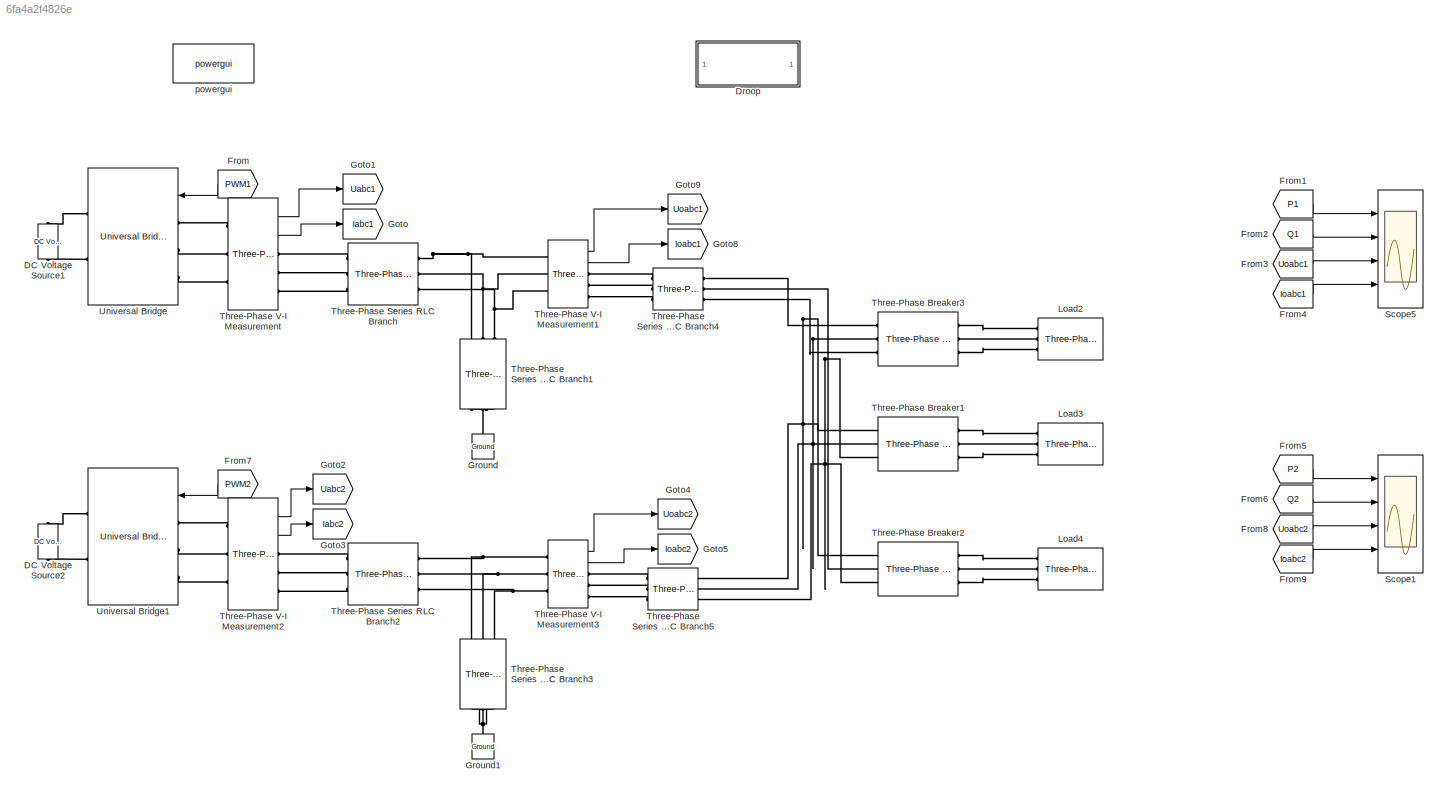
MODEL slx_6fa4a2f4826e
KIND model
CONFIG AbsTol = auto
CONFIG EnableMultiTasking = off
CONFIG FixedStep = auto
CONFIG MaxStep = auto
CONFIG MinStep = auto
CONFIG RelTol = 1e-3
CONFIG SampleTimeConstraint = Unconstrained
CONFIG Solver = VariableStepAuto
CONFIG SolverName = VariableStepAuto
CONFIG StartTime = 0.0
CONFIG StopTime = 8
BLOCK [Reference] DC Voltage Source1  REF=powerlib/Electrical Sources/DC Voltage Source
  Ports = [0, 0, 0, 0, 0, 1, 1]
  SourceBlock = powerlib/Electrical Sources/DC Voltage Source
  SourceType = DC Voltage Source
BLOCK [Reference] DC Voltage Source2  REF=powerlib/Electrical Sources/DC Voltage Source
  Ports = [0, 0, 0, 0, 0, 1, 1]
  SourceBlock = powerlib/Electrical Sources/DC Voltage Source
  SourceType = DC Voltage Source
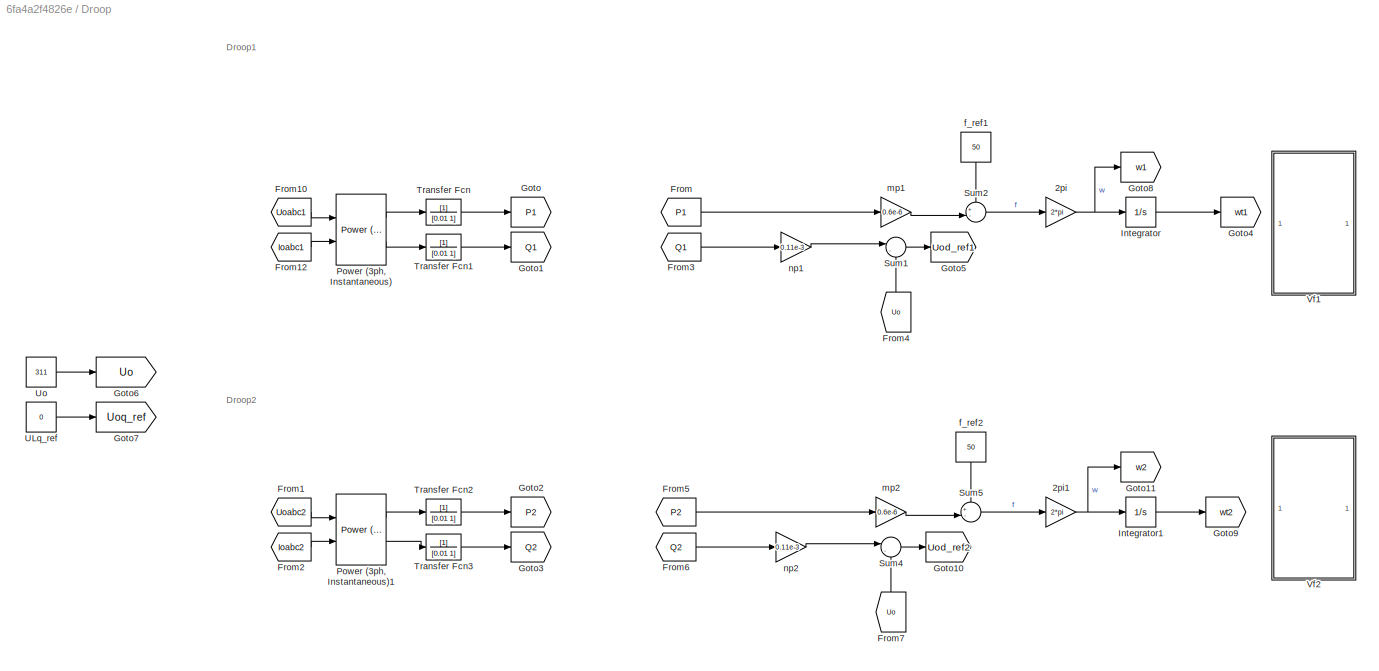
BLOCK [SubSystem] Droop
  Ports = []
BLOCK [Gain] Droop/2pi
  Gain = 2*pi
BLOCK [Gain] Droop/2pi1
  Gain = 2*pi
BLOCK [From] Droop/From
  GotoTag = P1
  TagVisibility = global
BLOCK [From] Droop/From1
  GotoTag = Uoabc2
  TagVisibility = global
BLOCK [From] Droop/From10
  GotoTag = Uoabc1
  TagVisibility = global
BLOCK [From] Droop/From12
  GotoTag = Ioabc1
  TagVisibility = global
BLOCK [From] Droop/From2
  GotoTag = Ioabc2
  TagVisibility = global
BLOCK [From] Droop/From3
  GotoTag = Q1
  TagVisibility = global
BLOCK [From] Droop/From4
  GotoTag = Uo
  TagVisibility = global
BLOCK [From] Droop/From5
  GotoTag = P2
  TagVisibility = global
BLOCK [From] Droop/From6
  GotoTag = Q2
  TagVisibility = global
BLOCK [From] Droop/From7
  GotoTag = Uo
  TagVisibility = global
BLOCK [Goto] Droop/Goto
  GotoTag = P1
  TagVisibility = global
BLOCK [Goto] Droop/Goto1
  GotoTag = Q1
  TagVisibility = global
BLOCK [Goto] Droop/Goto10
  GotoTag = Uod_ref2
  TagVisibility = global
BLOCK [Goto] Droop/Goto11
  GotoTag = w2
  TagVisibility = global
BLOCK [Goto] Droop/Goto2
  GotoTag = P2
  TagVisibility = global
BLOCK [Goto] Droop/Goto3
  GotoTag = Q2
  TagVisibility = global
BLOCK [Goto] Droop/Goto4
  GotoTag = wt1
  TagVisibility = global
BLOCK [Goto] Droop/Goto5
  GotoTag = Uod_ref1
  TagVisibility = global
BLOCK [Goto] Droop/Goto6
  GotoTag = Uo
  TagVisibility = global
BLOCK [Goto] Droop/Goto7
  GotoTag = Uoq_ref
  TagVisibility = global
BLOCK [Goto] Droop/Goto8
  GotoTag = w1
  TagVisibility = global
BLOCK [Goto] Droop/Goto9
  GotoTag = wt2
  TagVisibility = global
BLOCK [Integrator] Droop/Integrator
  Ports = [1, 1]
BLOCK [Integrator] Droop/Integrator1
  Ports = [1, 1]
BLOCK [Reference] Droop/Power (3ph, Instantaneous)  REF=powerlib_meascontrol/Measurements/Power (3ph, Instantaneous)
  Ports = [2, 2]
  SourceBlock = powerlib_meascontrol/Measurements/Power (3ph, Instantaneous)
  SourceType = Power (3ph, Instantaneous)
BLOCK [Reference] Droop/Power (3ph, Instantaneous)1  REF=powerlib_meascontrol/Measurements/Power (3ph, Instantaneous)
  Ports = [2, 2]
  SourceBlock = powerlib_meascontrol/Measurements/Power (3ph, Instantaneous)
  SourceType = Power (3ph, Instantaneous)
BLOCK [Sum] Droop/Sum1
  Inputs = |-+
  Ports = [2, 1]
BLOCK [Sum] Droop/Sum2
  Inputs = +-|
  Ports = [2, 1]
BLOCK [Sum] Droop/Sum4
  Inputs = |-+
  Ports = [2, 1]
BLOCK [Sum] Droop/Sum5
  Inputs = +-|
  Ports = [2, 1]
BLOCK [TransferFcn] Droop/Transfer Fcn
  Denominator = [0.01 1]
BLOCK [TransferFcn] Droop/Transfer Fcn1
  Denominator = [0.01 1]
BLOCK [TransferFcn] Droop/Transfer Fcn2
  Denominator = [0.01 1]
BLOCK [TransferFcn] Droop/Transfer Fcn3
  Denominator = [0.01 1]
BLOCK [Constant] Droop/ULq_ref
  Value = 0
BLOCK [Constant] Droop/Uo
  Value = 311
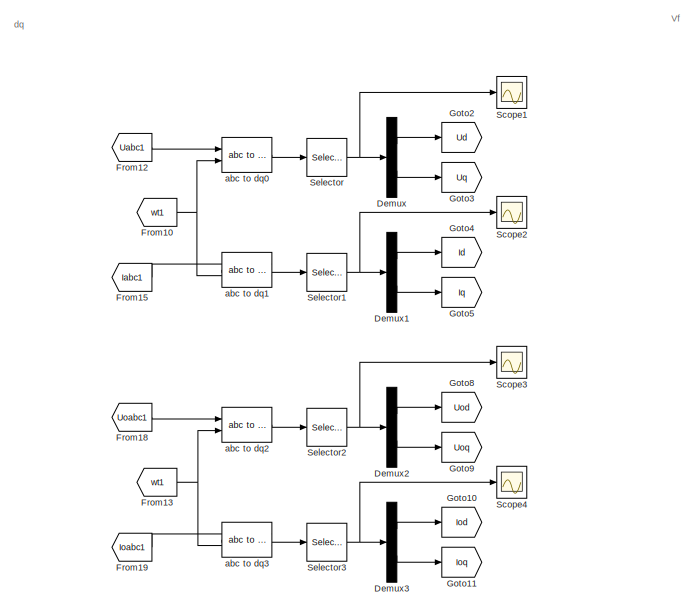
[diagram: Droop/Vf1 - part 1/2, left side, full height]
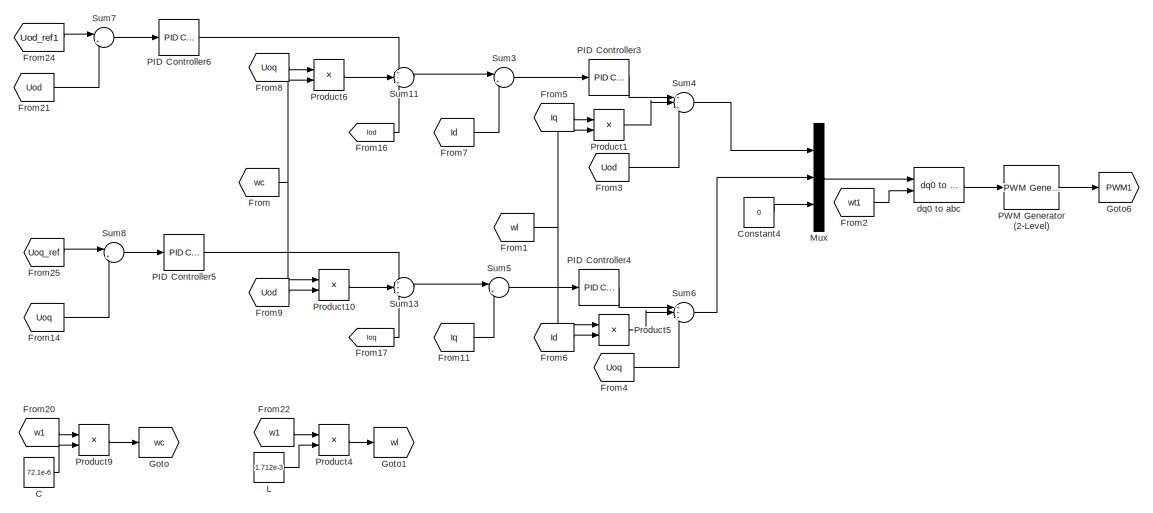
[diagram: Droop/Vf1 - part 2/2, right side, full height]
BLOCK [SubSystem] Droop/Vf1
  Ports = []
BLOCK [Constant] Droop/Vf1/C
  Value = 72.1e-6
BLOCK [Constant] Droop/Vf1/Constant4
  Value = 0
BLOCK [Demux] Droop/Vf1/Demux
  Outputs = 2
  Ports = [1, 2]
BLOCK [Demux] Droop/Vf1/Demux1
  Outputs = 2
  Ports = [1, 2]
BLOCK [Demux] Droop/Vf1/Demux2
  Outputs = 2
  Ports = [1, 2]
BLOCK [Demux] Droop/Vf1/Demux3
  Outputs = 2
  Ports = [1, 2]
BLOCK [From] Droop/Vf1/From
  GotoTag = wc
BLOCK [From] Droop/Vf1/From1
  GotoTag = wl
BLOCK [From] Droop/Vf1/From10
  GotoTag = wt1
  TagVisibility = global
BLOCK [From] Droop/Vf1/From11
  GotoTag = Iq
  IconDisplay = Tag and signal name
BLOCK [From] Droop/Vf1/From12
  GotoTag = Uabc1
  TagVisibility = global
BLOCK [From] Droop/Vf1/From13
  GotoTag = wt1
  TagVisibility = global
BLOCK [From] Droop/Vf1/From14
  GotoTag = Uoq
BLOCK [From] Droop/Vf1/From15
  GotoTag = Iabc1
  TagVisibility = global
BLOCK [From] Droop/Vf1/From16
  GotoTag = Iod
BLOCK [From] Droop/Vf1/From17
  GotoTag = Ioq
BLOCK [From] Droop/Vf1/From18
  GotoTag = Uoabc1
  TagVisibility = global
BLOCK [From] Droop/Vf1/From19
  GotoTag = Ioabc1
  TagVisibility = global
BLOCK [From] Droop/Vf1/From2
  GotoTag = wt1
  TagVisibility = global
BLOCK [From] Droop/Vf1/From20
  GotoTag = w1
  TagVisibility = global
BLOCK [From] Droop/Vf1/From21
  GotoTag = Uod
  IconDisplay = Tag and signal name
BLOCK [From] Droop/Vf1/From22
  GotoTag = w1
  TagVisibility = global
BLOCK [From] Droop/Vf1/From24
  GotoTag = Uod_ref1
  TagVisibility = global
BLOCK [From] Droop/Vf1/From25
  GotoTag = Uoq_ref
  IconDisplay = Tag and signal name
  TagVisibility = global
BLOCK [From] Droop/Vf1/From3
  GotoTag = Uod
  IconDisplay = Tag and signal name
BLOCK [From] Droop/Vf1/From4
  GotoTag = Uoq
BLOCK [From] Droop/Vf1/From5
  GotoTag = Iq
  IconDisplay = Tag and signal name
BLOCK [From] Droop/Vf1/From6
  GotoTag = Id
  IconDisplay = Tag and signal name
BLOCK [From] Droop/Vf1/From7
  GotoTag = Id
  IconDisplay = Tag and signal name
BLOCK [From] Droop/Vf1/From8
  GotoTag = Uoq
BLOCK [From] Droop/Vf1/From9
  GotoTag = Uod
  IconDisplay = Tag and signal name
BLOCK [Goto] Droop/Vf1/Goto
  GotoTag = wc
BLOCK [Goto] Droop/Vf1/Goto1
  GotoTag = wl
BLOCK [Goto] Droop/Vf1/Goto10
  GotoTag = Iod
BLOCK [Goto] Droop/Vf1/Goto11
  GotoTag = Ioq
BLOCK [Goto] Droop/Vf1/Goto2
  GotoTag = Ud
BLOCK [Goto] Droop/Vf1/Goto3
  GotoTag = Uq
BLOCK [Goto] Droop/Vf1/Goto4
  GotoTag = Id
BLOCK [Goto] Droop/Vf1/Goto5
  GotoTag = Iq
BLOCK [Goto] Droop/Vf1/Goto6
  GotoTag = PWM1
  TagVisibility = global
BLOCK [Goto] Droop/Vf1/Goto8
  GotoTag = Uod
BLOCK [Goto] Droop/Vf1/Goto9
  GotoTag = Uoq
BLOCK [Constant] Droop/Vf1/L
  Value = 1.712e-3
BLOCK [Mux] Droop/Vf1/Mux
  DisplayOption = bar
  Inputs = 3
  Ports = [3, 1]
BLOCK [Reference] Droop/Vf1/PID Controller3  REF=simulink/Continuous/PID Controller
  Ports = [1, 1]
  SourceBlock = simulink/Continuous/PID Controller
  SourceType = PID 1dof
BLOCK [Reference] Droop/Vf1/PID Controller4  REF=simulink/Continuous/PID Controller
  Ports = [1, 1]
  SourceBlock = simulink/Continuous/PID Controller
  SourceType = PID 1dof
BLOCK [Reference] Droop/Vf1/PID Controller5  REF=simulink/Continuous/PID Controller
  Ports = [1, 1]
  SourceBlock = simulink/Continuous/PID Controller
  SourceType = PID 1dof
BLOCK [Reference] Droop/Vf1/PID Controller6  REF=simulink/Continuous/PID Controller
  Ports = [1, 1]
  SourceBlock = simulink/Continuous/PID Controller
  SourceType = PID 1dof
BLOCK [Reference] Droop/Vf1/PWM Generator (2-Level)  REF=powerlib_meascontrol/Pulse & Signal Generators/PWM Generator (2-Level)
  Ports = [1, 1]
  SourceBlock = powerlib_meascontrol/Pulse & Signal Generators/PWM Generator (2-Level)
  SourceType = PWM Generator (2-Level)
BLOCK [Product] Droop/Vf1/Product1
  Ports = [2, 1]
BLOCK [Product] Droop/Vf1/Product10
  Ports = [2, 1]
BLOCK [Product] Droop/Vf1/Product4
  Ports = [2, 1]
BLOCK [Product] Droop/Vf1/Product5
  Ports = [2, 1]
BLOCK [Product] Droop/Vf1/Product6
  Ports = [2, 1]
BLOCK [Product] Droop/Vf1/Product9
  Ports = [2, 1]
BLOCK [Scope] Droop/Vf1/Scope1
  Floating = off
  NumInputPorts = 1
  Ports = [1]
  ScopeSpecificationString = Simulink.scopes.TimeScopeBlockCfg('CurrentConfiguration', extmgr.ConfigurationSet(extmgr.Configuration('Core','General UI',true),extmgr.Configuration('Core','Source UI',true),extmgr.Configuration('Sources','WiredSimulink',true,'DataLoggingVariableName','ScopeData3'),extmgr.Configuration('Visuals','Time Domain',true,'SerializedDisplays',{struct('MinYLimReal','-174.16657','MaxYLimReal','300.83007','...<+1464ch>
BLOCK [Scope] Droop/Vf1/Scope2
  Floating = off
  NumInputPorts = 1
  Ports = [1]
  ScopeSpecificationString = Simulink.scopes.TimeScopeBlockCfg('CurrentConfiguration', extmgr.ConfigurationSet(extmgr.Configuration('Core','General UI',true),extmgr.Configuration('Core','Source UI',true),extmgr.Configuration('Sources','WiredSimulink',true,'DataLoggingVariableName','ScopeData4'),extmgr.Configuration('Visuals','Time Domain',true,'SerializedDisplays',{struct('MinYLimReal','-9.5895','MaxYLimReal','44.81779','YLab...<+1452ch>
BLOCK [Scope] Droop/Vf1/Scope3
  Floating = off
  NumInputPorts = 1
  Ports = [1]
  ScopeSpecificationString = Simulink.scopes.TimeScopeBlockCfg('CurrentConfiguration', extmgr.ConfigurationSet(extmgr.Configuration('Core','General UI',true),extmgr.Configuration('Core','Source UI',true),extmgr.Configuration('Sources','WiredSimulink',true,'DataLoggingVariableName','ScopeData5'),extmgr.Configuration('Visuals','Time Domain',true,'SerializedDisplays',{struct('MinYLimReal','-43.7183','MaxYLimReal','390.50447','YL...<+1460ch>
BLOCK [Scope] Droop/Vf1/Scope4
  Floating = off
  NumInputPorts = 1
  Ports = [1]
  ScopeSpecificationString = Simulink.scopes.TimeScopeBlockCfg('CurrentConfiguration', extmgr.ConfigurationSet(extmgr.Configuration('Core','General UI',true),extmgr.Configuration('Core','Source UI',true),extmgr.Configuration('Sources','WiredSimulink',true,'DataLoggingVariableName','ScopeData6'),extmgr.Configuration('Visuals','Time Domain',true,'SerializedDisplays',{struct('MinYLimReal','-9.5895','MaxYLimReal','44.81779','YLab...<+1452ch>
BLOCK [Selector] Droop/Vf1/Selector
  IndexOptions = Index vector (dialog)
  Indices = [1 2]
  InputPortWidth = 3
  OutputSizes = 1
  Ports = [1, 1]
BLOCK [Selector] Droop/Vf1/Selector1
  IndexOptions = Index vector (dialog)
  Indices = [1 2]
  InputPortWidth = 3
  OutputSizes = 1
  Ports = [1, 1]
BLOCK [Selector] Droop/Vf1/Selector2
  IndexOptions = Index vector (dialog)
  Indices = [1 2]
  InputPortWidth = 3
  OutputSizes = 1
  Ports = [1, 1]
BLOCK [Selector] Droop/Vf1/Selector3
  IndexOptions = Index vector (dialog)
  Indices = [1 2]
  InputPortWidth = 3
  OutputSizes = 1
  Ports = [1, 1]
BLOCK [Sum] Droop/Vf1/Sum11
  Inputs = +-+
  Ports = [3, 1]
BLOCK [Sum] Droop/Vf1/Sum13
  Inputs = +++
  Ports = [3, 1]
BLOCK [Sum] Droop/Vf1/Sum3
  Inputs = |+-
  Ports = [2, 1]
BLOCK [Sum] Droop/Vf1/Sum4
  Inputs = +-+
  Ports = [3, 1]
BLOCK [Sum] Droop/Vf1/Sum5
  Inputs = |+-
  Ports = [2, 1]
BLOCK [Sum] Droop/Vf1/Sum6
  Inputs = +++
  Ports = [3, 1]
BLOCK [Sum] Droop/Vf1/Sum7
  Inputs = |+-
  Ports = [2, 1]
BLOCK [Sum] Droop/Vf1/Sum8
  Inputs = |+-
  Ports = [2, 1]
BLOCK [Reference] Droop/Vf1/abc to dq0  REF=powerlib_meascontrol/Transformations/abc to dq0
  Ports = [2, 1]
  SourceBlock = powerlib_meascontrol/Transformations/abc to dq0
  SourceType = abc to dq0 Transformation
BLOCK [Reference] Droop/Vf1/abc to dq1  REF=powerlib_meascontrol/Transformations/abc to dq0
  Ports = [2, 1]
  SourceBlock = powerlib_meascontrol/Transformations/abc to dq0
  SourceType = abc to dq0 Transformation
BLOCK [Reference] Droop/Vf1/abc to dq2  REF=powerlib_meascontrol/Transformations/abc to dq0
  Ports = [2, 1]
  SourceBlock = powerlib_meascontrol/Transformations/abc to dq0
  SourceType = abc to dq0 Transformation
BLOCK [Reference] Droop/Vf1/abc to dq3  REF=powerlib_meascontrol/Transformations/abc to dq0
  Ports = [2, 1]
  SourceBlock = powerlib_meascontrol/Transformations/abc to dq0
  SourceType = abc to dq0 Transformation
BLOCK [Reference] Droop/Vf1/dq0 to abc  REF=powerlib_meascontrol/Transformations/dq0 to abc
  Ports = [2, 1]
  SourceBlock = powerlib_meascontrol/Transformations/dq0 to abc
  SourceType = dq0 to abc Transformation
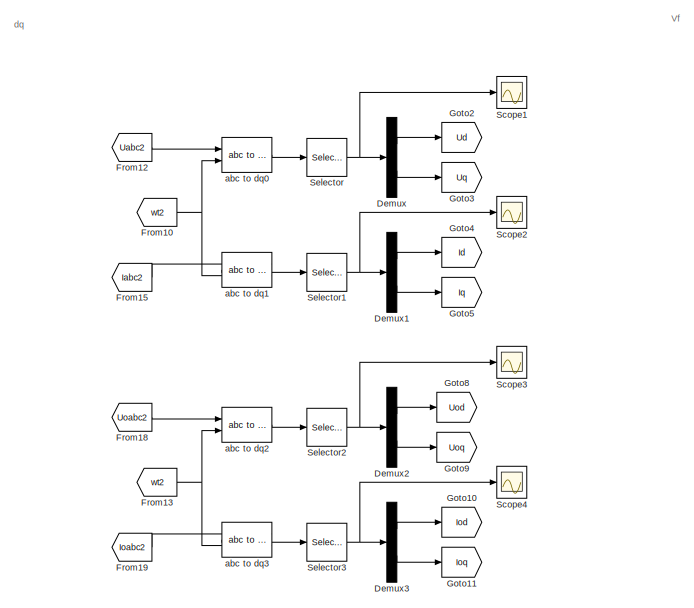
[diagram: Droop/Vf2 - part 1/2, left side, full height]
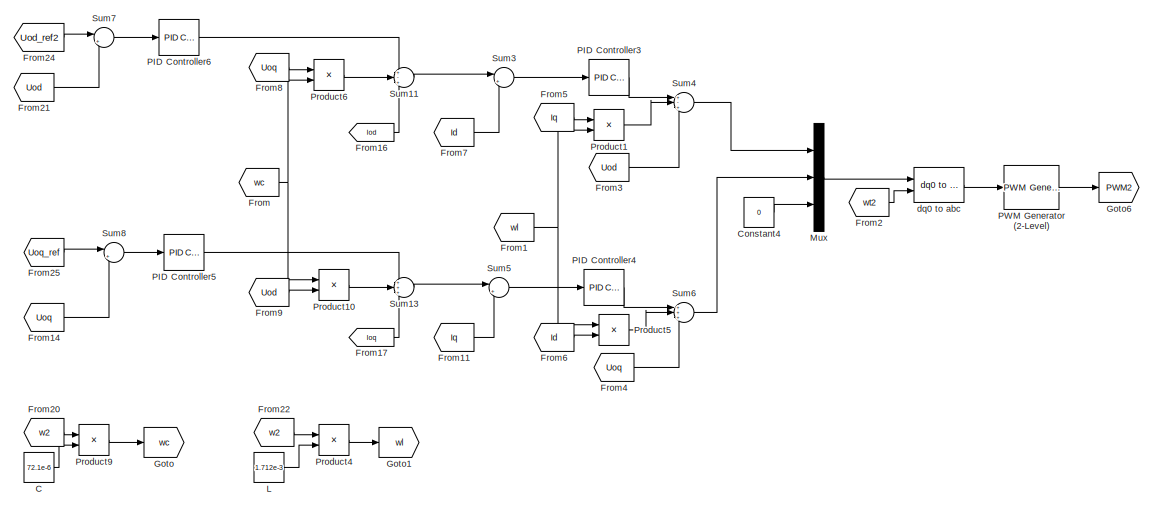
[diagram: Droop/Vf2 - part 2/2, right side, full height]
BLOCK [SubSystem] Droop/Vf2
  Ports = []
BLOCK [Constant] Droop/Vf2/C
  Value = 72.1e-6
BLOCK [Constant] Droop/Vf2/Constant4
  Value = 0
BLOCK [Demux] Droop/Vf2/Demux
  Outputs = 2
  Ports = [1, 2]
BLOCK [Demux] Droop/Vf2/Demux1
  Outputs = 2
  Ports = [1, 2]
BLOCK [Demux] Droop/Vf2/Demux2
  Outputs = 2
  Ports = [1, 2]
BLOCK [Demux] Droop/Vf2/Demux3
  Outputs = 2
  Ports = [1, 2]
BLOCK [From] Droop/Vf2/From
  GotoTag = wc
BLOCK [From] Droop/Vf2/From1
  GotoTag = wl
BLOCK [From] Droop/Vf2/From10
  GotoTag = wt2
  TagVisibility = global
BLOCK [From] Droop/Vf2/From11
  GotoTag = Iq
  IconDisplay = Tag and signal name
BLOCK [From] Droop/Vf2/From12
  GotoTag = Uabc2
  TagVisibility = global
BLOCK [From] Droop/Vf2/From13
  GotoTag = wt2
  TagVisibility = global
BLOCK [From] Droop/Vf2/From14
  GotoTag = Uoq
BLOCK [From] Droop/Vf2/From15
  GotoTag = Iabc2
  TagVisibility = global
BLOCK [From] Droop/Vf2/From16
  GotoTag = Iod
BLOCK [From] Droop/Vf2/From17
  GotoTag = Ioq
BLOCK [From] Droop/Vf2/From18
  GotoTag = Uoabc2
  TagVisibility = global
BLOCK [From] Droop/Vf2/From19
  GotoTag = Ioabc2
  TagVisibility = global
BLOCK [From] Droop/Vf2/From2
  GotoTag = wt2
  TagVisibility = global
BLOCK [From] Droop/Vf2/From20
  GotoTag = w2
  TagVisibility = global
BLOCK [From] Droop/Vf2/From21
  GotoTag = Uod
  IconDisplay = Tag and signal name
BLOCK [From] Droop/Vf2/From22
  GotoTag = w2
  TagVisibility = global
BLOCK [From] Droop/Vf2/From24
  GotoTag = Uod_ref2
  IconDisplay = Tag and signal name
  TagVisibility = global
BLOCK [From] Droop/Vf2/From25
  GotoTag = Uoq_ref
  IconDisplay = Tag and signal name
  TagVisibility = global
BLOCK [From] Droop/Vf2/From3
  GotoTag = Uod
  IconDisplay = Tag and signal name
BLOCK [From] Droop/Vf2/From4
  GotoTag = Uoq
BLOCK [From] Droop/Vf2/From5
  GotoTag = Iq
  IconDisplay = Tag and signal name
BLOCK [From] Droop/Vf2/From6
  GotoTag = Id
  IconDisplay = Tag and signal name
BLOCK [From] Droop/Vf2/From7
  GotoTag = Id
  IconDisplay = Tag and signal name
BLOCK [From] Droop/Vf2/From8
  GotoTag = Uoq
BLOCK [From] Droop/Vf2/From9
  GotoTag = Uod
  IconDisplay = Tag and signal name
BLOCK [Goto] Droop/Vf2/Goto
  GotoTag = wc
BLOCK [Goto] Droop/Vf2/Goto1
  GotoTag = wl
BLOCK [Goto] Droop/Vf2/Goto10
  GotoTag = Iod
BLOCK [Goto] Droop/Vf2/Goto11
  GotoTag = Ioq
BLOCK [Goto] Droop/Vf2/Goto2
  GotoTag = Ud
BLOCK [Goto] Droop/Vf2/Goto3
  GotoTag = Uq
BLOCK [Goto] Droop/Vf2/Goto4
  GotoTag = Id
BLOCK [Goto] Droop/Vf2/Goto5
  GotoTag = Iq
BLOCK [Goto] Droop/Vf2/Goto6
  GotoTag = PWM2
  TagVisibility = global
BLOCK [Goto] Droop/Vf2/Goto8
  GotoTag = Uod
BLOCK [Goto] Droop/Vf2/Goto9
  GotoTag = Uoq
BLOCK [Constant] Droop/Vf2/L
  Value = 1.712e-3
BLOCK [Mux] Droop/Vf2/Mux
  DisplayOption = bar
  Inputs = 3
  Ports = [3, 1]
BLOCK [Reference] Droop/Vf2/PID Controller3  REF=simulink/Continuous/PID Controller
  Ports = [1, 1]
  SourceBlock = simulink/Continuous/PID Controller
  SourceType = PID 1dof
BLOCK [Reference] Droop/Vf2/PID Controller4  REF=simulink/Continuous/PID Controller
  Ports = [1, 1]
  SourceBlock = simulink/Continuous/PID Controller
  SourceType = PID 1dof
BLOCK [Reference] Droop/Vf2/PID Controller5  REF=simulink/Continuous/PID Controller
  Ports = [1, 1]
  SourceBlock = simulink/Continuous/PID Controller
  SourceType = PID 1dof
BLOCK [Reference] Droop/Vf2/PID Controller6  REF=simulink/Continuous/PID Controller
  Ports = [1, 1]
  SourceBlock = simulink/Continuous/PID Controller
  SourceType = PID 1dof
BLOCK [Reference] Droop/Vf2/PWM Generator (2-Level)  REF=powerlib_meascontrol/Pulse & Signal Generators/PWM Generator (2-Level)
  Ports = [1, 1]
  SourceBlock = powerlib_meascontrol/Pulse & Signal Generators/PWM Generator (2-Level)
  SourceType = PWM Generator (2-Level)
BLOCK [Product] Droop/Vf2/Product1
  Ports = [2, 1]
BLOCK [Product] Droop/Vf2/Product10
  Ports = [2, 1]
BLOCK [Product] Droop/Vf2/Product4
  Ports = [2, 1]
BLOCK [Product] Droop/Vf2/Product5
  Ports = [2, 1]
BLOCK [Product] Droop/Vf2/Product6
  Ports = [2, 1]
BLOCK [Product] Droop/Vf2/Product9
  Ports = [2, 1]
BLOCK [Scope] Droop/Vf2/Scope1
  Floating = off
  NumInputPorts = 1
  Ports = [1]
  ScopeSpecificationString = Simulink.scopes.TimeScopeBlockCfg('CurrentConfiguration', extmgr.ConfigurationSet(extmgr.Configuration('Core','General UI',true),extmgr.Configuration('Core','Source UI',true),extmgr.Configuration('Sources','WiredSimulink',true,'DataLoggingVariableName','ScopeData7'),extmgr.Configuration('Visuals','Time Domain',true,'SerializedDisplays',{struct('MinYLimReal','-174.16657','MaxYLimReal','300.83007','...<+1464ch>
BLOCK [Scope] Droop/Vf2/Scope2
  Floating = off
  NumInputPorts = 1
  Ports = [1]
  ScopeSpecificationString = Simulink.scopes.TimeScopeBlockCfg('CurrentConfiguration', extmgr.ConfigurationSet(extmgr.Configuration('Core','General UI',true),extmgr.Configuration('Core','Source UI',true),extmgr.Configuration('Sources','WiredSimulink',true,'DataLoggingVariableName','ScopeData8'),extmgr.Configuration('Visuals','Time Domain',true,'SerializedDisplays',{struct('MinYLimReal','-9.5895','MaxYLimReal','44.81779','YLab...<+1452ch>
BLOCK [Scope] Droop/Vf2/Scope3
  Floating = off
  NumInputPorts = 1
  Ports = [1]
  ScopeSpecificationString = Simulink.scopes.TimeScopeBlockCfg('CurrentConfiguration', extmgr.ConfigurationSet(extmgr.Configuration('Core','General UI',true),extmgr.Configuration('Core','Source UI',true),extmgr.Configuration('Sources','WiredSimulink',true,'DataLoggingVariableName','ScopeData9'),extmgr.Configuration('Visuals','Time Domain',true,'SerializedDisplays',{struct('MinYLimReal','-43.7183','MaxYLimReal','390.50447','YL...<+1460ch>
BLOCK [Scope] Droop/Vf2/Scope4
  Floating = off
  NumInputPorts = 1
  Ports = [1]
  ScopeSpecificationString = Simulink.scopes.TimeScopeBlockCfg('CurrentConfiguration', extmgr.ConfigurationSet(extmgr.Configuration('Core','General UI',true),extmgr.Configuration('Core','Source UI',true),extmgr.Configuration('Sources','WiredSimulink',true,'DataLoggingVariableName','ScopeData10'),extmgr.Configuration('Visuals','Time Domain',true,'SerializedDisplays',{struct('MinYLimReal','-9.5895','MaxYLimReal','44.81779','YLa...<+1453ch>
BLOCK [Selector] Droop/Vf2/Selector
  IndexOptions = Index vector (dialog)
  Indices = [1 2]
  InputPortWidth = 3
  OutputSizes = 1
  Ports = [1, 1]
BLOCK [Selector] Droop/Vf2/Selector1
  IndexOptions = Index vector (dialog)
  Indices = [1 2]
  InputPortWidth = 3
  OutputSizes = 1
  Ports = [1, 1]
BLOCK [Selector] Droop/Vf2/Selector2
  IndexOptions = Index vector (dialog)
  Indices = [1 2]
  InputPortWidth = 3
  OutputSizes = 1
  Ports = [1, 1]
BLOCK [Selector] Droop/Vf2/Selector3
  IndexOptions = Index vector (dialog)
  Indices = [1 2]
  InputPortWidth = 3
  OutputSizes = 1
  Ports = [1, 1]
BLOCK [Sum] Droop/Vf2/Sum11
  Inputs = +-+
  Ports = [3, 1]
BLOCK [Sum] Droop/Vf2/Sum13
  Inputs = +++
  Ports = [3, 1]
BLOCK [Sum] Droop/Vf2/Sum3
  Inputs = |+-
  Ports = [2, 1]
BLOCK [Sum] Droop/Vf2/Sum4
  Inputs = +-+
  Ports = [3, 1]
BLOCK [Sum] Droop/Vf2/Sum5
  Inputs = |+-
  Ports = [2, 1]
BLOCK [Sum] Droop/Vf2/Sum6
  Inputs = +++
  Ports = [3, 1]
BLOCK [Sum] Droop/Vf2/Sum7
  Inputs = |+-
  Ports = [2, 1]
BLOCK [Sum] Droop/Vf2/Sum8
  Inputs = |+-
  Ports = [2, 1]
BLOCK [Reference] Droop/Vf2/abc to dq0  REF=powerlib_meascontrol/Transformations/abc to dq0
  Ports = [2, 1]
  SourceBlock = powerlib_meascontrol/Transformations/abc to dq0
  SourceType = abc to dq0 Transformation
BLOCK [Reference] Droop/Vf2/abc to dq1  REF=powerlib_meascontrol/Transformations/abc to dq0
  Ports = [2, 1]
  SourceBlock = powerlib_meascontrol/Transformations/abc to dq0
  SourceType = abc to dq0 Transformation
BLOCK [Reference] Droop/Vf2/abc to dq2  REF=powerlib_meascontrol/Transformations/abc to dq0
  Ports = [2, 1]
  SourceBlock = powerlib_meascontrol/Transformations/abc to dq0
  SourceType = abc to dq0 Transformation
BLOCK [Reference] Droop/Vf2/abc to dq3  REF=powerlib_meascontrol/Transformations/abc to dq0
  Ports = [2, 1]
  SourceBlock = powerlib_meascontrol/Transformations/abc to dq0
  SourceType = abc to dq0 Transformation
BLOCK [Reference] Droop/Vf2/dq0 to abc  REF=powerlib_meascontrol/Transformations/dq0 to abc
  Ports = [2, 1]
  SourceBlock = powerlib_meascontrol/Transformations/dq0 to abc
  SourceType = dq0 to abc Transformation
BLOCK [Constant] Droop/f_ref1
  Value = 50
BLOCK [Constant] Droop/f_ref2
  Value = 50
BLOCK [Gain] Droop/mp1
  Gain = 0.6e-6
BLOCK [Gain] Droop/mp2
  Gain = 0.6e-6
BLOCK [Gain] Droop/np1
  Gain = 0.11e-3
BLOCK [Gain] Droop/np2
  Gain = 0.11e-3
BLOCK [From] From
  GotoTag = PWM1
  IconDisplay = Tag and signal name
  TagVisibility = global
BLOCK [From] From1
  GotoTag = P1
  TagVisibility = global
BLOCK [From] From2
  GotoTag = Q1
  TagVisibility = global
BLOCK [From] From3
  GotoTag = Uoabc1
  TagVisibility = global
BLOCK [From] From4
  GotoTag = Ioabc1
  TagVisibility = global
BLOCK [From] From5
  GotoTag = P2
  TagVisibility = global
BLOCK [From] From6
  GotoTag = Q2
  TagVisibility = global
BLOCK [From] From7
  GotoTag = PWM2
  TagVisibility = global
BLOCK [From] From8
  GotoTag = Uoabc2
  TagVisibility = global
BLOCK [From] From9
  GotoTag = Ioabc2
  TagVisibility = global
BLOCK [Goto] Goto
  GotoTag = Iabc1
  TagVisibility = global
BLOCK [Goto] Goto1
  GotoTag = Uabc1
  TagVisibility = global
BLOCK [Goto] Goto2
  GotoTag = Uabc2
  TagVisibility = global
BLOCK [Goto] Goto3
  GotoTag = Iabc2
  TagVisibility = global
BLOCK [Goto] Goto4
  GotoTag = Uoabc2
  TagVisibility = global
BLOCK [Goto] Goto5
  GotoTag = Ioabc2
  TagVisibility = global
BLOCK [Goto] Goto8
  GotoTag = Ioabc1
  TagVisibility = global
BLOCK [Goto] Goto9
  GotoTag = Uoabc1
  TagVisibility = global
BLOCK [Reference] Ground  REF=powerlib/Elements/Ground
  Ports = [0, 0, 0, 0, 0, 1]
  SourceBlock = powerlib/Elements/Ground
  SourceType = Ground
BLOCK [Reference] Ground1  REF=powerlib/Elements/Ground
  Ports = [0, 0, 0, 0, 0, 1]
  SourceBlock = powerlib/Elements/Ground
  SourceType = Ground
BLOCK [Reference] Load2  REF=powerlib/Elements/Three-Phase Series RLC Load
  AttributesFormatString = \n
  Ports = [0, 0, 0, 0, 0, 3]
  SourceBlock = powerlib/Elements/Three-Phase Series RLC Load
  SourceType = Three-Phase Series RLC Load
BLOCK [Reference] Load3  REF=powerlib/Elements/Three-Phase Series RLC Load
  AttributesFormatString = \n
  Ports = [0, 0, 0, 0, 0, 3]
  SourceBlock = powerlib/Elements/Three-Phase Series RLC Load
  SourceType = Three-Phase Series RLC Load
BLOCK [Reference] Load4  REF=powerlib/Elements/Three-Phase Series RLC Load
  AttributesFormatString = \n
  Ports = [0, 0, 0, 0, 0, 3]
  SourceBlock = powerlib/Elements/Three-Phase Series RLC Load
  SourceType = Three-Phase Series RLC Load
BLOCK [Scope] Scope1
  Floating = off
  NumInputPorts = 4
  Ports = [4]
  ScopeSpecificationString = Simulink.scopes.TimeScopeBlockCfg('CurrentConfiguration', extmgr.ConfigurationSet(extmgr.Configuration('Core','General UI',true),extmgr.Configuration('Core','Source UI',true),extmgr.Configuration('Sources','WiredSimulink',true,'DataLoggingVariableName','ScopeData11'),extmgr.Configuration('Visuals','Time Domain',true,'SerializedDisplays',{struct('MinYLimReal','-1475.06608','MaxYLimReal','13275.5947...<+4269ch>
BLOCK [Scope] Scope5
  Floating = off
  NumInputPorts = 4
  Ports = [4]
  ScopeSpecificationString = Simulink.scopes.TimeScopeBlockCfg('CurrentConfiguration', extmgr.ConfigurationSet(extmgr.Configuration('Core','General UI',true),extmgr.Configuration('Core','Source UI',true),extmgr.Configuration('Sources','WiredSimulink',true,'DataLoggingVariableName','ScopeData4'),extmgr.Configuration('Visuals','Time Domain',true,'SerializedDisplays',{struct('MinYLimReal','-1137.70743','MaxYLimReal','10239.36689...<+4262ch>
BLOCK [Reference] Three-Phase Breaker1  REF=powerlib/Elements/Three-Phase Breaker
  Ports = [0, 0, 0, 0, 0, 3, 3]
  SourceBlock = powerlib/Elements/Three-Phase Breaker
  SourceType = Three-Phase Breaker
BLOCK [Reference] Three-Phase Breaker2  REF=powerlib/Elements/Three-Phase Breaker
  Ports = [0, 0, 0, 0, 0, 3, 3]
  SourceBlock = powerlib/Elements/Three-Phase Breaker
  SourceType = Three-Phase Breaker
BLOCK [Reference] Three-Phase Breaker3  REF=powerlib/Elements/Three-Phase Breaker
  Ports = [0, 0, 0, 0, 0, 3, 3]
  SourceBlock = powerlib/Elements/Three-Phase Breaker
  SourceType = Three-Phase Breaker
BLOCK [Reference] Three-Phase Series RLC Branch  REF=powerlib/Elements/Three-Phase Series RLC Branch
  AttributesFormatString = \n
  Ports = [0, 0, 0, 0, 0, 3, 3]
  SourceBlock = powerlib/Elements/Three-Phase Series RLC Branch
  SourceType = Three-Phase Series RLC Branch
BLOCK [Reference] Three-Phase Series RLC Branch1  REF=powerlib/Elements/Three-Phase Series RLC Branch
  AttributesFormatString = \n
  Ports = [0, 0, 0, 0, 0, 3, 3]
  SourceBlock = powerlib/Elements/Three-Phase Series RLC Branch
  SourceType = Three-Phase Series RLC Branch
BLOCK [Reference] Three-Phase Series RLC Branch2  REF=powerlib/Elements/Three-Phase Series RLC Branch
  AttributesFormatString = \n
  Ports = [0, 0, 0, 0, 0, 3, 3]
  SourceBlock = powerlib/Elements/Three-Phase Series RLC Branch
  SourceType = Three-Phase Series RLC Branch
BLOCK [Reference] Three-Phase Series RLC Branch3  REF=powerlib/Elements/Three-Phase Series RLC Branch
  AttributesFormatString = \n
  Ports = [0, 0, 0, 0, 0, 3, 3]
  SourceBlock = powerlib/Elements/Three-Phase Series RLC Branch
  SourceType = Three-Phase Series RLC Branch
BLOCK [Reference] Three-Phase Series RLC Branch4  REF=powerlib/Elements/Three-Phase Series RLC Branch
  AttributesFormatString = \n
  Ports = [0, 0, 0, 0, 0, 3, 3]
  SourceBlock = powerlib/Elements/Three-Phase Series RLC Branch
  SourceType = Three-Phase Series RLC Branch
BLOCK [Reference] Three-Phase Series RLC Branch5  REF=powerlib/Elements/Three-Phase Series RLC Branch
  AttributesFormatString = \n
  Ports = [0, 0, 0, 0, 0, 3, 3]
  SourceBlock = powerlib/Elements/Three-Phase Series RLC Branch
  SourceType = Three-Phase Series RLC Branch
BLOCK [Reference] Three-Phase V-I Measurement  REF=powerlib/Measurements/Three-Phase V-I Measurement
  Ports = [0, 2, 0, 0, 0, 3, 3]
  SourceBlock = powerlib/Measurements/Three-Phase V-I Measurement
  SourceType = Three-Phase VI Measurement
BLOCK [Reference] Three-Phase V-I Measurement1  REF=powerlib/Measurements/Three-Phase V-I Measurement
  Ports = [0, 2, 0, 0, 0, 3, 3]
  SourceBlock = powerlib/Measurements/Three-Phase V-I Measurement
  SourceType = Three-Phase VI Measurement
BLOCK [Reference] Three-Phase V-I Measurement2  REF=powerlib/Measurements/Three-Phase V-I Measurement
  Ports = [0, 2, 0, 0, 0, 3, 3]
  SourceBlock = powerlib/Measurements/Three-Phase V-I Measurement
  SourceType = Three-Phase VI Measurement
BLOCK [Reference] Three-Phase V-I Measurement3  REF=powerlib/Measurements/Three-Phase V-I Measurement
  Ports = [0, 2, 0, 0, 0, 3, 3]
  SourceBlock = powerlib/Measurements/Three-Phase V-I Measurement
  SourceType = Three-Phase VI Measurement
BLOCK [Reference] Universal Bridge  REF=powerlib/Power Electronics/Universal Bridge
  Ports = [1, 0, 0, 0, 0, 3, 2]
  SourceBlock = powerlib/Power Electronics/Universal Bridge
  SourceType = Universal Bridge
BLOCK [Reference] Universal Bridge1  REF=powerlib/Power Electronics/Universal Bridge
  Ports = [1, 0, 0, 0, 0, 3, 2]
  SourceBlock = powerlib/Power Electronics/Universal Bridge
  SourceType = Universal Bridge
BLOCK [Reference] powergui  REF=powerlib/powergui
  Ports = []
  Priority = 1
  SourceBlock = powerlib/powergui
  SourceType = PSB option menu block
ANNOTATION Droop: Droop1
ANNOTATION Droop: Droop2
ANNOTATION Droop/Vf1: Vf
ANNOTATION Droop/Vf1: dq
ANNOTATION Droop/Vf2: Vf
ANNOTATION Droop/Vf2: dq
NET Droop/2pi1:1 -> Droop/Goto11:1, Droop/Integrator1:1
NET Droop/2pi:1 -> Droop/Goto8:1, Droop/Integrator:1
LINE Droop/From10:1 -> Droop/Power (3ph, Instantaneous):1
LINE Droop/From12:1 -> Droop/Power (3ph, Instantaneous):2
LINE Droop/From1:1 -> Droop/Power (3ph, Instantaneous)1:1
LINE Droop/From2:1 -> Droop/Power (3ph, Instantaneous)1:2
LINE Droop/From3:1 -> Droop/np1:1
LINE Droop/From4:1 -> Droop/Sum1:2
LINE Droop/From5:1 -> Droop/mp2:1
LINE Droop/From6:1 -> Droop/np2:1
LINE Droop/From7:1 -> Droop/Sum4:2
LINE Droop/From:1 -> Droop/mp1:1
LINE Droop/Integrator1:1 -> Droop/Goto9:1
LINE Droop/Integrator:1 -> Droop/Goto4:1
LINE Droop/Power (3ph, Instantaneous)1:1 -> Droop/Transfer Fcn2:1
LINE Droop/Power (3ph, Instantaneous)1:2 -> Droop/Transfer Fcn3:1
LINE Droop/Power (3ph, Instantaneous):1 -> Droop/Transfer Fcn:1
LINE Droop/Power (3ph, Instantaneous):2 -> Droop/Transfer Fcn1:1
LINE Droop/Sum1:1 -> Droop/Goto5:1
LINE Droop/Sum2:1 -> Droop/2pi:1
LINE Droop/Sum4:1 -> Droop/Goto10:1
LINE Droop/Sum5:1 -> Droop/2pi1:1
LINE Droop/Transfer Fcn1:1 -> Droop/Goto1:1
LINE Droop/Transfer Fcn2:1 -> Droop/Goto2:1
LINE Droop/Transfer Fcn3:1 -> Droop/Goto3:1
LINE Droop/Transfer Fcn:1 -> Droop/Goto:1
LINE Droop/ULq_ref:1 -> Droop/Goto7:1
LINE Droop/Uo:1 -> Droop/Goto6:1
LINE Droop/Vf1/C:1 -> Droop/Vf1/Product9:2
LINE Droop/Vf1/Constant4:1 -> Droop/Vf1/Mux:3
LINE Droop/Vf1/Demux1:1 -> Droop/Vf1/Goto4:1
LINE Droop/Vf1/Demux1:2 -> Droop/Vf1/Goto5:1
LINE Droop/Vf1/Demux2:1 -> Droop/Vf1/Goto8:1
LINE Droop/Vf1/Demux2:2 -> Droop/Vf1/Goto9:1
LINE Droop/Vf1/Demux3:1 -> Droop/Vf1/Goto10:1
LINE Droop/Vf1/Demux3:2 -> Droop/Vf1/Goto11:1
LINE Droop/Vf1/Demux:1 -> Droop/Vf1/Goto2:1
LINE Droop/Vf1/Demux:2 -> Droop/Vf1/Goto3:1
NET Droop/Vf1/From10:1 -> Droop/Vf1/abc to dq0:2, Droop/Vf1/abc to dq1:2
LINE Droop/Vf1/From11:1 -> Droop/Vf1/Sum5:2
LINE Droop/Vf1/From12:1 -> Droop/Vf1/abc to dq0:1
NET Droop/Vf1/From13:1 -> Droop/Vf1/abc to dq2:2, Droop/Vf1/abc to dq3:2
LINE Droop/Vf1/From14:1 -> Droop/Vf1/Sum8:2
LINE Droop/Vf1/From15:1 -> Droop/Vf1/abc to dq1:1
LINE Droop/Vf1/From16:1 -> Droop/Vf1/Sum11:3
LINE Droop/Vf1/From17:1 -> Droop/Vf1/Sum13:3
LINE Droop/Vf1/From18:1 -> Droop/Vf1/abc to dq2:1
LINE Droop/Vf1/From19:1 -> Droop/Vf1/abc to dq3:1
NET Droop/Vf1/From1:1 -> Droop/Vf1/Product1:2, Droop/Vf1/Product5:1
LINE Droop/Vf1/From20:1 -> Droop/Vf1/Product9:1
LINE Droop/Vf1/From21:1 -> Droop/Vf1/Sum7:2
LINE Droop/Vf1/From22:1 -> Droop/Vf1/Product4:1
LINE Droop/Vf1/From24:1 -> Droop/Vf1/Sum7:1
LINE Droop/Vf1/From25:1 -> Droop/Vf1/Sum8:1
LINE Droop/Vf1/From2:1 -> Droop/Vf1/dq0 to abc:2
LINE Droop/Vf1/From3:1 -> Droop/Vf1/Sum4:3
LINE Droop/Vf1/From4:1 -> Droop/Vf1/Sum6:3
LINE Droop/Vf1/From5:1 -> Droop/Vf1/Product1:1
LINE Droop/Vf1/From6:1 -> Droop/Vf1/Product5:2
LINE Droop/Vf1/From7:1 -> Droop/Vf1/Sum3:2
LINE Droop/Vf1/From8:1 -> Droop/Vf1/Product6:1
LINE Droop/Vf1/From9:1 -> Droop/Vf1/Product10:2
NET Droop/Vf1/From:1 -> Droop/Vf1/Product10:1, Droop/Vf1/Product6:2
LINE Droop/Vf1/L:1 -> Droop/Vf1/Product4:2
LINE Droop/Vf1/Mux:1 -> Droop/Vf1/dq0 to abc:1
LINE Droop/Vf1/PID Controller3:1 -> Droop/Vf1/Sum4:1
LINE Droop/Vf1/PID Controller4:1 -> Droop/Vf1/Sum6:1
LINE Droop/Vf1/PID Controller5:1 -> Droop/Vf1/Sum13:1
LINE Droop/Vf1/PID Controller6:1 -> Droop/Vf1/Sum11:1
LINE Droop/Vf1/PWM Generator (2-Level):1 -> Droop/Vf1/Goto6:1
LINE Droop/Vf1/Product10:1 -> Droop/Vf1/Sum13:2
LINE Droop/Vf1/Product1:1 -> Droop/Vf1/Sum4:2
LINE Droop/Vf1/Product4:1 -> Droop/Vf1/Goto1:1
LINE Droop/Vf1/Product5:1 -> Droop/Vf1/Sum6:2
LINE Droop/Vf1/Product6:1 -> Droop/Vf1/Sum11:2
LINE Droop/Vf1/Product9:1 -> Droop/Vf1/Goto:1
NET Droop/Vf1/Selector1:1 -> Droop/Vf1/Demux1:1, Droop/Vf1/Scope2:1
NET Droop/Vf1/Selector2:1 -> Droop/Vf1/Demux2:1, Droop/Vf1/Scope3:1
NET Droop/Vf1/Selector3:1 -> Droop/Vf1/Demux3:1, Droop/Vf1/Scope4:1
NET Droop/Vf1/Selector:1 -> Droop/Vf1/Demux:1, Droop/Vf1/Scope1:1
LINE Droop/Vf1/Sum11:1 -> Droop/Vf1/Sum3:1
LINE Droop/Vf1/Sum13:1 -> Droop/Vf1/Sum5:1
LINE Droop/Vf1/Sum3:1 -> Droop/Vf1/PID Controller3:1
LINE Droop/Vf1/Sum4:1 -> Droop/Vf1/Mux:1
LINE Droop/Vf1/Sum5:1 -> Droop/Vf1/PID Controller4:1
LINE Droop/Vf1/Sum6:1 -> Droop/Vf1/Mux:2
LINE Droop/Vf1/Sum7:1 -> Droop/Vf1/PID Controller6:1
LINE Droop/Vf1/Sum8:1 -> Droop/Vf1/PID Controller5:1
LINE Droop/Vf1/abc to dq0:1 -> Droop/Vf1/Selector:1
LINE Droop/Vf1/abc to dq1:1 -> Droop/Vf1/Selector1:1
LINE Droop/Vf1/abc to dq2:1 -> Droop/Vf1/Selector2:1
LINE Droop/Vf1/abc to dq3:1 -> Droop/Vf1/Selector3:1
LINE Droop/Vf1/dq0 to abc:1 -> Droop/Vf1/PWM Generator (2-Level):1
LINE Droop/Vf2/C:1 -> Droop/Vf2/Product9:2
LINE Droop/Vf2/Constant4:1 -> Droop/Vf2/Mux:3
LINE Droop/Vf2/Demux1:1 -> Droop/Vf2/Goto4:1
LINE Droop/Vf2/Demux1:2 -> Droop/Vf2/Goto5:1
LINE Droop/Vf2/Demux2:1 -> Droop/Vf2/Goto8:1
LINE Droop/Vf2/Demux2:2 -> Droop/Vf2/Goto9:1
LINE Droop/Vf2/Demux3:1 -> Droop/Vf2/Goto10:1
LINE Droop/Vf2/Demux3:2 -> Droop/Vf2/Goto11:1
LINE Droop/Vf2/Demux:1 -> Droop/Vf2/Goto2:1
LINE Droop/Vf2/Demux:2 -> Droop/Vf2/Goto3:1
NET Droop/Vf2/From10:1 -> Droop/Vf2/abc to dq0:2, Droop/Vf2/abc to dq1:2
LINE Droop/Vf2/From11:1 -> Droop/Vf2/Sum5:2
LINE Droop/Vf2/From12:1 -> Droop/Vf2/abc to dq0:1
NET Droop/Vf2/From13:1 -> Droop/Vf2/abc to dq2:2, Droop/Vf2/abc to dq3:2
LINE Droop/Vf2/From14:1 -> Droop/Vf2/Sum8:2
LINE Droop/Vf2/From15:1 -> Droop/Vf2/abc to dq1:1
LINE Droop/Vf2/From16:1 -> Droop/Vf2/Sum11:3
LINE Droop/Vf2/From17:1 -> Droop/Vf2/Sum13:3
LINE Droop/Vf2/From18:1 -> Droop/Vf2/abc to dq2:1
LINE Droop/Vf2/From19:1 -> Droop/Vf2/abc to dq3:1
NET Droop/Vf2/From1:1 -> Droop/Vf2/Product1:2, Droop/Vf2/Product5:1
LINE Droop/Vf2/From20:1 -> Droop/Vf2/Product9:1
LINE Droop/Vf2/From21:1 -> Droop/Vf2/Sum7:2
LINE Droop/Vf2/From22:1 -> Droop/Vf2/Product4:1
LINE Droop/Vf2/From24:1 -> Droop/Vf2/Sum7:1
LINE Droop/Vf2/From25:1 -> Droop/Vf2/Sum8:1
LINE Droop/Vf2/From2:1 -> Droop/Vf2/dq0 to abc:2
LINE Droop/Vf2/From3:1 -> Droop/Vf2/Sum4:3
LINE Droop/Vf2/From4:1 -> Droop/Vf2/Sum6:3
LINE Droop/Vf2/From5:1 -> Droop/Vf2/Product1:1
LINE Droop/Vf2/From6:1 -> Droop/Vf2/Product5:2
LINE Droop/Vf2/From7:1 -> Droop/Vf2/Sum3:2
LINE Droop/Vf2/From8:1 -> Droop/Vf2/Product6:1
LINE Droop/Vf2/From9:1 -> Droop/Vf2/Product10:2
NET Droop/Vf2/From:1 -> Droop/Vf2/Product10:1, Droop/Vf2/Product6:2
LINE Droop/Vf2/L:1 -> Droop/Vf2/Product4:2
LINE Droop/Vf2/Mux:1 -> Droop/Vf2/dq0 to abc:1
LINE Droop/Vf2/PID Controller3:1 -> Droop/Vf2/Sum4:1
LINE Droop/Vf2/PID Controller4:1 -> Droop/Vf2/Sum6:1
LINE Droop/Vf2/PID Controller5:1 -> Droop/Vf2/Sum13:1
LINE Droop/Vf2/PID Controller6:1 -> Droop/Vf2/Sum11:1
LINE Droop/Vf2/PWM Generator (2-Level):1 -> Droop/Vf2/Goto6:1
LINE Droop/Vf2/Product10:1 -> Droop/Vf2/Sum13:2
LINE Droop/Vf2/Product1:1 -> Droop/Vf2/Sum4:2
LINE Droop/Vf2/Product4:1 -> Droop/Vf2/Goto1:1
LINE Droop/Vf2/Product5:1 -> Droop/Vf2/Sum6:2
LINE Droop/Vf2/Product6:1 -> Droop/Vf2/Sum11:2
LINE Droop/Vf2/Product9:1 -> Droop/Vf2/Goto:1
NET Droop/Vf2/Selector1:1 -> Droop/Vf2/Demux1:1, Droop/Vf2/Scope2:1
NET Droop/Vf2/Selector2:1 -> Droop/Vf2/Demux2:1, Droop/Vf2/Scope3:1
NET Droop/Vf2/Selector3:1 -> Droop/Vf2/Demux3:1, Droop/Vf2/Scope4:1
NET Droop/Vf2/Selector:1 -> Droop/Vf2/Demux:1, Droop/Vf2/Scope1:1
LINE Droop/Vf2/Sum11:1 -> Droop/Vf2/Sum3:1
LINE Droop/Vf2/Sum13:1 -> Droop/Vf2/Sum5:1
LINE Droop/Vf2/Sum3:1 -> Droop/Vf2/PID Controller3:1
LINE Droop/Vf2/Sum4:1 -> Droop/Vf2/Mux:1
LINE Droop/Vf2/Sum5:1 -> Droop/Vf2/PID Controller4:1
LINE Droop/Vf2/Sum6:1 -> Droop/Vf2/Mux:2
LINE Droop/Vf2/Sum7:1 -> Droop/Vf2/PID Controller6:1
LINE Droop/Vf2/Sum8:1 -> Droop/Vf2/PID Controller5:1
LINE Droop/Vf2/abc to dq0:1 -> Droop/Vf2/Selector:1
LINE Droop/Vf2/abc to dq1:1 -> Droop/Vf2/Selector1:1
LINE Droop/Vf2/abc to dq2:1 -> Droop/Vf2/Selector2:1
LINE Droop/Vf2/abc to dq3:1 -> Droop/Vf2/Selector3:1
LINE Droop/Vf2/dq0 to abc:1 -> Droop/Vf2/PWM Generator (2-Level):1
LINE Droop/f_ref1:1 -> Droop/Sum2:1
LINE Droop/f_ref2:1 -> Droop/Sum5:1
LINE Droop/mp1:1 -> Droop/Sum2:2
LINE Droop/mp2:1 -> Droop/Sum5:2
LINE Droop/np1:1 -> Droop/Sum1:1
LINE Droop/np2:1 -> Droop/Sum4:1
LINE From1:1 -> Scope5:1
LINE From2:1 -> Scope5:2
LINE From3:1 -> Scope5:3
LINE From4:1 -> Scope5:4
LINE From5:1 -> Scope1:1
LINE From6:1 -> Scope1:2
LINE From7:1 -> Universal Bridge1:1
LINE From8:1 -> Scope1:3
LINE From9:1 -> Scope1:4
LINE From:1 -> Universal Bridge:1
LINE Three-Phase V-I Measurement1:1 -> Goto9:1
LINE Three-Phase V-I Measurement1:2 -> Goto8:1
LINE Three-Phase V-I Measurement2:1 -> Goto2:1
LINE Three-Phase V-I Measurement2:2 -> Goto3:1
LINE Three-Phase V-I Measurement3:1 -> Goto4:1
LINE Three-Phase V-I Measurement3:2 -> Goto5:1
LINE Three-Phase V-I Measurement:1 -> Goto1:1
LINE Three-Phase V-I Measurement:2 -> Goto:1
PLINE DC Voltage Source1:LConn1 -- Universal Bridge:RConn2
PLINE DC Voltage Source1:RConn1 -- Universal Bridge:RConn1
PLINE DC Voltage Source2:LConn1 -- Universal Bridge1:RConn2
PLINE DC Voltage Source2:RConn1 -- Universal Bridge1:RConn1
PNET net1: Ground1:LConn1 -- Three-Phase Series RLC Branch3:RConn1 -- Three-Phase Series RLC Branch3:RConn2 -- Three-Phase Series RLC Branch3:RConn3
PNET net2: Ground:LConn1 -- Three-Phase Series RLC Branch1:RConn1 -- Three-Phase Series RLC Branch1:RConn2 -- Three-Phase Series RLC Branch1:RConn3
PLINE Load2:LConn1 -- Three-Phase Breaker3:RConn1
PLINE Load2:LConn2 -- Three-Phase Breaker3:RConn2
PLINE Load2:LConn3 -- Three-Phase Breaker3:RConn3
PLINE Load3:LConn1 -- Three-Phase Breaker1:RConn1
PLINE Load3:LConn2 -- Three-Phase Breaker1:RConn2
PLINE Load3:LConn3 -- Three-Phase Breaker1:RConn3
PLINE Load4:LConn1 -- Three-Phase Breaker2:RConn1
PLINE Load4:LConn2 -- Three-Phase Breaker2:RConn2
PLINE Load4:LConn3 -- Three-Phase Breaker2:RConn3
PNET net3: Three-Phase Breaker1:LConn1 -- Three-Phase Breaker2:LConn1 -- Three-Phase Breaker3:LConn1 -- Three-Phase Series RLC Branch4:RConn1 -- Three-Phase Series RLC Branch5:RConn1
PNET net4: Three-Phase Breaker1:LConn2 -- Three-Phase Breaker2:LConn2 -- Three-Phase Breaker3:LConn2 -- Three-Phase Series RLC Branch4:RConn2 -- Three-Phase Series RLC Branch5:RConn2
PNET net5: Three-Phase Breaker1:LConn3 -- Three-Phase Breaker2:LConn3 -- Three-Phase Breaker3:LConn3 -- Three-Phase Series RLC Branch4:RConn3 -- Three-Phase Series RLC Branch5:RConn3
PNET net6: Three-Phase Series RLC Branch1:LConn1 -- Three-Phase Series RLC Branch:RConn1 -- Three-Phase V-I Measurement1:LConn1
PNET net7: Three-Phase Series RLC Branch1:LConn2 -- Three-Phase Series RLC Branch:RConn2 -- Three-Phase V-I Measurement1:LConn2
PNET net8: Three-Phase Series RLC Branch1:LConn3 -- Three-Phase Series RLC Branch:RConn3 -- Three-Phase V-I Measurement1:LConn3
PLINE Three-Phase Series RLC Branch2:LConn1 -- Three-Phase V-I Measurement2:RConn1
PLINE Three-Phase Series RLC Branch2:LConn2 -- Three-Phase V-I Measurement2:RConn2
PLINE Three-Phase Series RLC Branch2:LConn3 -- Three-Phase V-I Measurement2:RConn3
PNET net9: Three-Phase Series RLC Branch2:RConn1 -- Three-Phase Series RLC Branch3:LConn1 -- Three-Phase V-I Measurement3:LConn1
PNET net10: Three-Phase Series RLC Branch2:RConn2 -- Three-Phase Series RLC Branch3:LConn2 -- Three-Phase V-I Measurement3:LConn2
PNET net11: Three-Phase Series RLC Branch2:RConn3 -- Three-Phase Series RLC Branch3:LConn3 -- Three-Phase V-I Measurement3:LConn3
PLINE Three-Phase Series RLC Branch4:LConn1 -- Three-Phase V-I Measurement1:RConn1
PLINE Three-Phase Series RLC Branch4:LConn2 -- Three-Phase V-I Measurement1:RConn2
PLINE Three-Phase Series RLC Branch4:LConn3 -- Three-Phase V-I Measurement1:RConn3
PLINE Three-Phase Series RLC Branch5:LConn1 -- Three-Phase V-I Measurement3:RConn1
PLINE Three-Phase Series RLC Branch5:LConn2 -- Three-Phase V-I Measurement3:RConn2
PLINE Three-Phase Series RLC Branch5:LConn3 -- Three-Phase V-I Measurement3:RConn3
PLINE Three-Phase Series RLC Branch:LConn1 -- Three-Phase V-I Measurement:RConn1
PLINE Three-Phase Series RLC Branch:LConn2 -- Three-Phase V-I Measurement:RConn2
PLINE Three-Phase Series RLC Branch:LConn3 -- Three-Phase V-I Measurement:RConn3
PLINE Three-Phase V-I Measurement2:LConn1 -- Universal Bridge1:LConn1
PLINE Three-Phase V-I Measurement2:LConn2 -- Universal Bridge1:LConn2
PLINE Three-Phase V-I Measurement2:LConn3 -- Universal Bridge1:LConn3
PLINE Three-Phase V-I Measurement:LConn1 -- Universal Bridge:LConn1
PLINE Three-Phase V-I Measurement:LConn2 -- Universal Bridge:LConn2
PLINE Three-Phase V-I Measurement:LConn3 -- Universal Bridge:LConn3
note: NET lines group one-source signal fan-out (src -> all destinations, sorted); 1:1 wires keep LINE; PNET lines group multi-terminal physical nets as a canonical sorted terminal list (undirected conserving connections); 2-terminal nets keep the pairwise PLINE form
